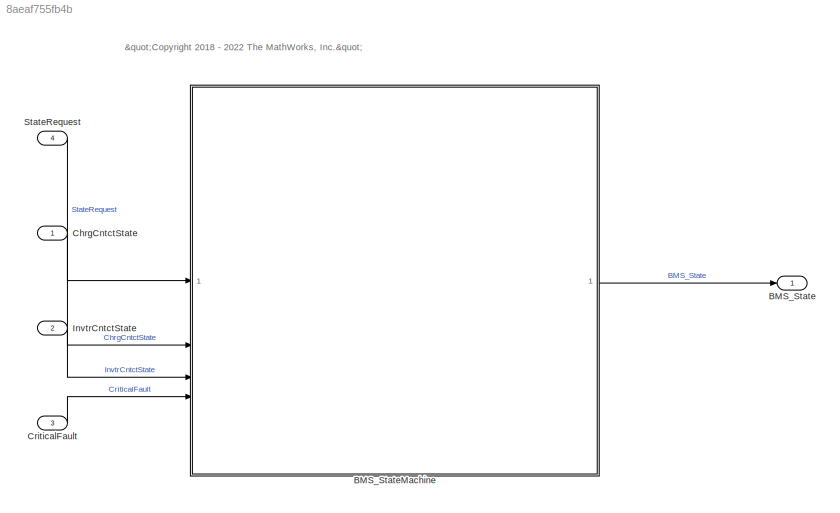
MODEL slx_8aeaf755fb4b
KIND model
BLOCK [Outport] BMS_State
  OutDataTypeStr = Enum: BMS_State_Enum
  PortDimensions = 1
  SampleTime = [0.10000000000000001,0]
  SamplingMode = Sample based
  SignalType = real
  VectorParamsAs1DForOutWhenUnconnected = off
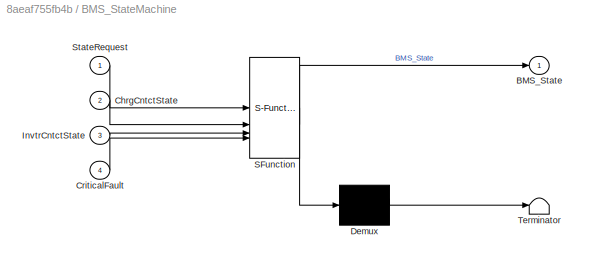
BLOCK [SubSystem] BMS_StateMachine
  ErrorFcn = Stateflow.Translate.translate
  PermitHierarchicalResolution = ExplicitOnly
  SFBlockType = Chart
  TreatAsAtomicUnit = on
  VariantControl = (default)
BLOCK [Demux] BMS_StateMachine/ Demux 
  Outputs = 1
BLOCK [S-Function] BMS_StateMachine/ SFunction 
  EnableBusSupport = on
  FunctionName = sf_sfun
  PortCounts = [4 2]
  SFcnIsStateOwnerBlock = off
  SFunctionDeploymentMode = off
  Tag = Stateflow S-Function 2
BLOCK [Terminator] BMS_StateMachine/ Terminator 
BLOCK [Outport] BMS_StateMachine/BMS_State
  VectorParamsAs1DForOutWhenUnconnected = off
BLOCK [Inport] BMS_StateMachine/ChrgCntctState
  Port = 2
BLOCK [Inport] BMS_StateMachine/CriticalFault
  Port = 4
BLOCK [Inport] BMS_StateMachine/InvtrCntctState
  Port = 3
BLOCK [Inport] BMS_StateMachine/StateRequest
BLOCK [Inport] ChrgCntctState
BLOCK [Inport] CriticalFault
  Port = 3
BLOCK [Inport] InvtrCntctState
  Port = 2
BLOCK [Inport] StateRequest
  Interpolate = off
  OutDataTypeStr = Enum: SRE
  Port = 4
  PortDimensions = 1
  SampleTime = [0.10000000000000001,0]
  SamplingMode = Sample based
  SignalType = real
ANNOTATION (root): "<copyright redacted>
LINE BMS_StateMachine:1 -> BMS_State:1
LINE ChrgCntctState:1 -> BMS_StateMachine:2
LINE CriticalFault:1 -> BMS_StateMachine:4
LINE InvtrCntctState:1 -> BMS_StateMachine:3
LINE StateRequest:1 -> BMS_StateMachine:1
CHART BMS_StateMachine states=4 transitions=9
  STATE_LABEL 'Driving\nen:\nBMS_State = ...\n    BMS_State_Enum.BMS_Driving;\n'
  STATE_LABEL 'Standby\nen:\nBMS_State = ...\n    BMS_State_Enum.BMS_Standby;\n'
  STATE_LABEL 'Charging\nen:\nBMS_State = ...\n    BMS_State_Enum.BMS_Charging;\n'
  STATE_LABEL 'Fault\nen,du:\nBMS_State = BMS_State_Enum.BMS_Fault;\n'
CHART  states=0 transitions=0
